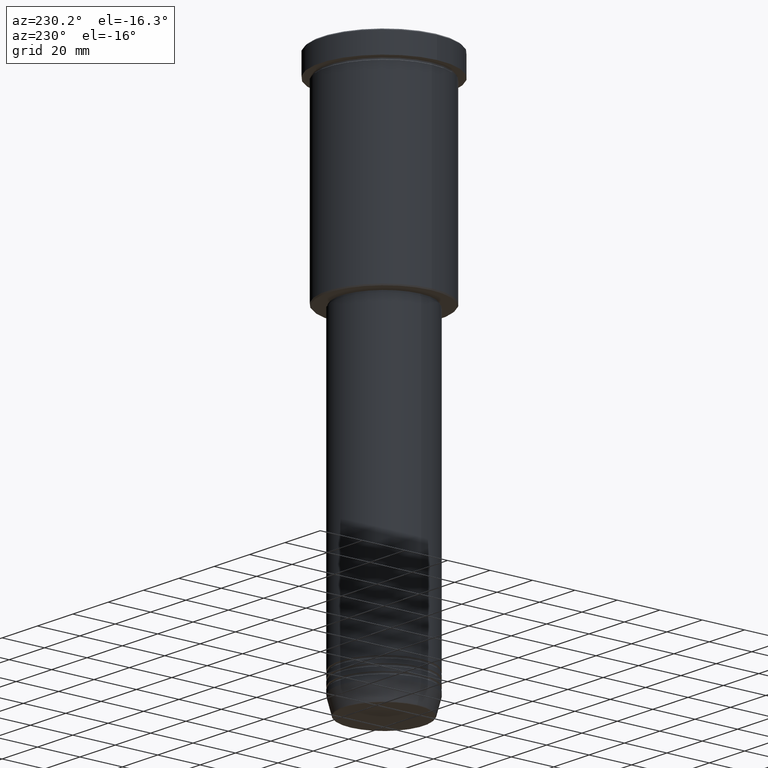
[diagram: clean part render]
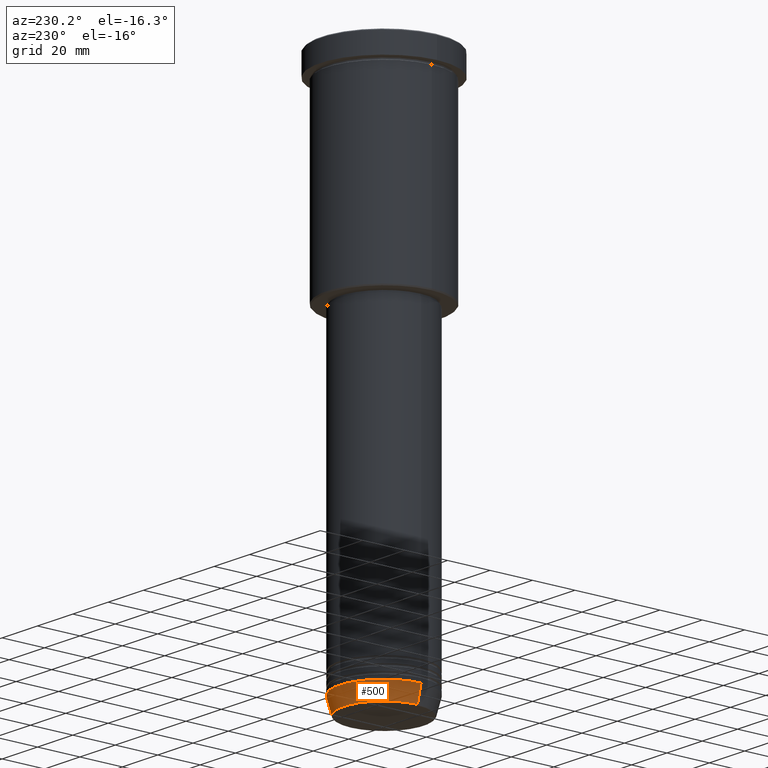
[diagram: same view with one face highlighted and labeled with its STEP entity id]
A machine part, auxiliary view. The second image highlights one B-rep face of the part: STEP entity #500.
In plain terms, the highlighted conical surface has half-angle 15 deg.
Its self-contained STEP definition (entity closure, byte-faithful):
#3 = EDGE_CURVE ( 'NONE', #788, #520, #849, .T. ) ;
#47 = ORIENTED_EDGE ( 'NONE', *, *, #524, .F. ) ;
#78 = DIRECTION ( 'NONE',  ( -0.000000000000000000, -0.000000000000000000, 1.000000000000000000 ) ) ;
#91 = DIRECTION ( 'NONE',  ( -0.000000000000000000, -0.000000000000000000, 1.000000000000000000 ) ) ;
#164 = CARTESIAN_POINT ( 'NONE',  ( 0.000000000000000000, 0.000000000000000000, -243.0000000000000284 ) ) ;
#180 = ORIENTED_EDGE ( 'NONE', *, *, #3, .F. ) ;
#249 = LINE ( 'NONE', #828, #1031 ) ;
#256 = ORIENTED_EDGE ( 'NONE', *, *, #677, .T. ) ;
#273 = VERTEX_POINT ( 'NONE', #1176 ) ;
#319 = CARTESIAN_POINT ( 'NONE',  ( 0.000000000000000000, 0.000000000000000000, -250.6294095225512422 ) ) ;
#325 = AXIS2_PLACEMENT_3D ( 'NONE', #164, #78, #440 ) ;
#326 = CARTESIAN_POINT ( 'NONE',  ( 18.95570587970606624, 0.000000000000000000, -250.6294095225512422 ) ) ;
#360 = FACE_OUTER_BOUND ( 'NONE', #1107, .T. ) ;
#365 = VECTOR ( 'NONE', #1032, 1000.000000000000000 ) ;
#369 = AXIS2_PLACEMENT_3D ( 'NONE', #642, #91, #542 ) ;
#380 = ORIENTED_EDGE ( 'NONE', *, *, #820, .T. ) ;
#440 = DIRECTION ( 'NONE',  ( 1.000000000000000000, 0.000000000000000000, 0.000000000000000000 ) ) ;
#456 = CARTESIAN_POINT ( 'NONE',  ( -21.00000000000000000, 2.571758278209441661E-15, -243.0000000000000284 ) ) ;
#499 = CARTESIAN_POINT ( 'NONE',  ( 21.00000000000000000, 0.000000000000000000, -243.0000000000000284 ) ) ;
#500 = ADVANCED_FACE ( 'NONE', ( #360 ), #909, .T. ) ;
#510 = DIRECTION ( 'NONE',  ( -0.000000000000000000, -0.000000000000000000, 1.000000000000000000 ) ) ;
#520 = VERTEX_POINT ( 'NONE', #456 ) ;
#524 = EDGE_CURVE ( 'NONE', #1159, #788, #249, .T. ) ;
#542 = DIRECTION ( 'NONE',  ( 1.000000000000000000, 0.000000000000000000, 0.000000000000000000 ) ) ;
#642 = CARTESIAN_POINT ( 'NONE',  ( 0.000000000000000000, 0.000000000000000000, -243.0000000000000284 ) ) ;
#677 = EDGE_CURVE ( 'NONE', #273, #520, #1101, .T. ) ;
#710 = CIRCLE ( 'NONE', #1083, 18.95570587970606624 ) ;
#760 = CARTESIAN_POINT ( 'NONE',  ( -21.00000000000000000, 2.571758278209441661E-15, -243.0000000000000284 ) ) ;
#788 = VERTEX_POINT ( 'NONE', #499 ) ;
#820 = EDGE_CURVE ( 'NONE', #1159, #273, #710, .T. ) ;
#828 = CARTESIAN_POINT ( 'NONE',  ( 21.00000000000000000, 0.000000000000000000, -243.0000000000000284 ) ) ;
#849 = CIRCLE ( 'NONE', #325, 21.00000000000000000 ) ;
#904 = DIRECTION ( 'NONE',  ( 0.2588190451025213501, 0.000000000000000000, 0.9659258262890680902 ) ) ;
#909 = CONICAL_SURFACE ( 'NONE', #369, 21.00000000000000000, 0.2617993877991500740 ) ;
#964 = DIRECTION ( 'NONE',  ( 1.000000000000000000, 0.000000000000000000, 0.000000000000000000 ) ) ;
#1031 = VECTOR ( 'NONE', #904, 1000.000000000000000 ) ;
#1032 = DIRECTION ( 'NONE',  ( -0.2588190451025213501, 3.169619151431772337E-17, 0.9659258262890680902 ) ) ;
#1083 = AXIS2_PLACEMENT_3D ( 'NONE', #319, #510, #964 ) ;
#1101 = LINE ( 'NONE', #760, #365 ) ;
#1107 = EDGE_LOOP ( 'NONE', ( #380, #256, #180, #47 ) ) ;
#1159 = VERTEX_POINT ( 'NONE', #326 ) ;
#1176 = CARTESIAN_POINT ( 'NONE',  ( -18.95570587970606624, 2.446581365662756125E-15, -250.6294095225512422 ) ) ;